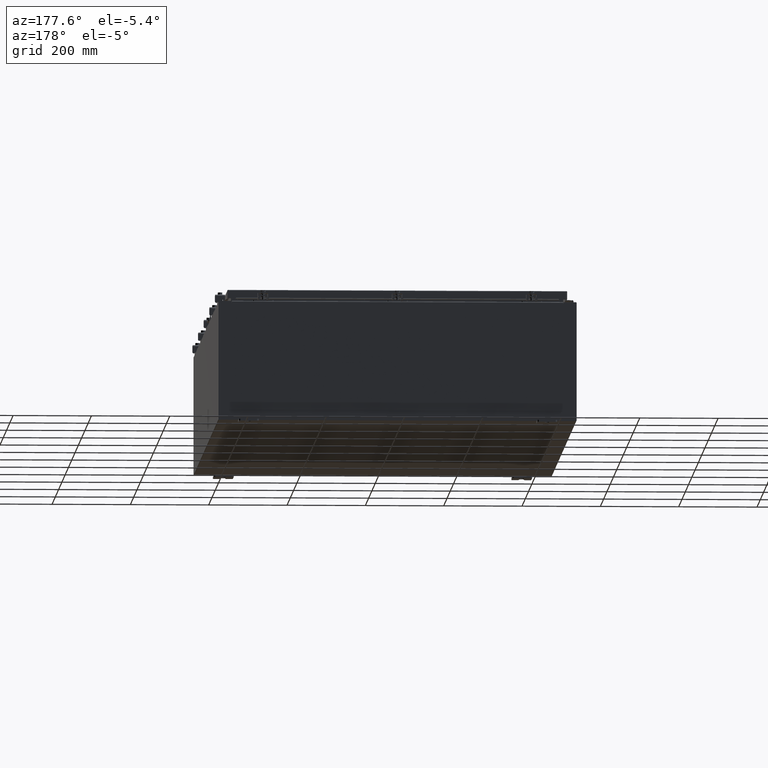
[diagram: clean part render]
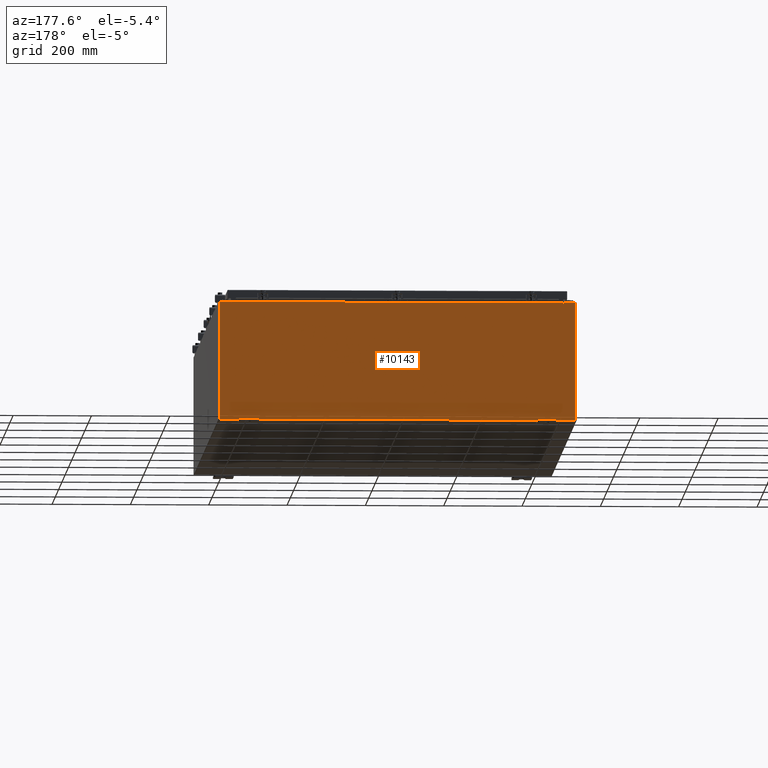
[diagram: same view with one face highlighted and labeled with its STEP entity id]
A machine part, auxiliary view. The second image highlights one B-rep face of the part: STEP entity #10143.
In plain terms, the highlighted planar face has unit normal (0, -1, 0).
Its self-contained STEP definition (entity closure, byte-faithful):
#409 = VERTEX_POINT ( 'NONE', #17280 ) ;
#1465 = DIRECTION ( 'NONE',  ( 0.0000000000000000000, -1.000000000000000000, 0.0000000000000000000 ) ) ;
#1556 = CARTESIAN_POINT ( 'NONE',  ( 16.67455000000000400, 0.0000000000000000000, 5.874949999999999200 ) ) ;
#1740 = ORIENTED_EDGE ( 'NONE', *, *, #21158, .T. ) ;
#2240 = DIRECTION ( 'NONE',  ( 0.0000000000000000000, 0.0000000000000000000, -1.000000000000000000 ) ) ;
#2544 = CARTESIAN_POINT ( 'NONE',  ( 16.65587500000000500, 0.0000000000000000000, 5.874949999999999200 ) ) ;
#2878 = EDGE_CURVE ( 'NONE', #22071, #4848, #28366, .T. ) ;
#3267 = CARTESIAN_POINT ( 'NONE',  ( -16.63720000000000000, 3.756290991288361700E-016, 5.912299999999999200 ) ) ;
#3508 = CARTESIAN_POINT ( 'NONE',  ( 17.92530000000000400, 0.0000000000000000000, 5.925300000000000000 ) ) ;
#3673 = ORIENTED_EDGE ( 'NONE', *, *, #23926, .T. ) ;
#4848 = VERTEX_POINT ( 'NONE', #38360 ) ;
#5728 = LINE ( 'NONE', #14194, #28507 ) ;
#7421 = DIRECTION ( 'NONE',  ( 0.0000000000000000000, 0.0000000000000000000, -1.000000000000000000 ) ) ;
#7808 = LINE ( 'NONE', #44236, #32138 ) ;
#8428 = VERTEX_POINT ( 'NONE', #3508 ) ;
#9551 = ORIENTED_EDGE ( 'NONE', *, *, #33819, .F. ) ;
#10143 = ADVANCED_FACE ( 'NONE', ( #47705 ), #20814, .F. ) ;
#11041 = CARTESIAN_POINT ( 'NONE',  ( 17.92530000000000400, 0.0000000000000000000, -5.925300000000000000 ) ) ;
#11583 = AXIS2_PLACEMENT_3D ( 'NONE', #25693, #1465, #35512 ) ;
#11782 = LINE ( 'NONE', #40733, #23185 ) ;
#12478 = VECTOR ( 'NONE', #18875, 39.37007874015748100 ) ;
#14194 = CARTESIAN_POINT ( 'NONE',  ( -17.92529999999999600, 0.0000000000000000000, 5.925299999999999100 ) ) ;
#15449 = VECTOR ( 'NONE', #20339, 39.37007874015748100 ) ;
#15828 = CIRCLE ( 'NONE', #59971, 0.01867499999999949400 ) ;
#15933 = VERTEX_POINT ( 'NONE', #56793 ) ;
#16035 = CARTESIAN_POINT ( 'NONE',  ( 16.67454999999949500, -0.0000000000000000000, -1.447541957108302900E-012 ) ) ;
#17033 = ORIENTED_EDGE ( 'NONE', *, *, #32883, .F. ) ;
#17280 = CARTESIAN_POINT ( 'NONE',  ( 16.67455000000000700, 0.0000000000000000000, 5.925300000000000000 ) ) ;
#17595 = CARTESIAN_POINT ( 'NONE',  ( -17.92529999999999600, 0.0000000000000000000, 5.925299999999999100 ) ) ;
#18875 = DIRECTION ( 'NONE',  ( 0.0000000000000000000, 0.0000000000000000000, 1.000000000000000000 ) ) ;
#19088 = VECTOR ( 'NONE', #57797, 39.37007874015748100 ) ;
#19220 = VECTOR ( 'NONE', #20808, 39.37007874015748100 ) ;
#19600 = ORIENTED_EDGE ( 'NONE', *, *, #29066, .T. ) ;
#19742 = EDGE_CURVE ( 'NONE', #46802, #4848, #21587, .T. ) ;
#20339 = DIRECTION ( 'NONE',  ( 1.000000000000000000, 0.0000000000000000000, 0.0000000000000000000 ) ) ;
#20808 = DIRECTION ( 'NONE',  ( -1.000000000000000000, -0.0000000000000000000, -0.0000000000000000000 ) ) ;
#20814 = PLANE ( 'NONE',  #11583 ) ;
#21158 = EDGE_CURVE ( 'NONE', #50834, #15933, #33685, .T. ) ;
#21587 = LINE ( 'NONE', #56106, #32998 ) ;
#22071 = VERTEX_POINT ( 'NONE', #3267 ) ;
#22549 = CARTESIAN_POINT ( 'NONE',  ( -16.67455000000000000, 0.0000000000000000000, 5.925299999999999100 ) ) ;
#22597 = VECTOR ( 'NONE', #27364, 39.37007874015748100 ) ;
#23185 = VECTOR ( 'NONE', #60321, 39.37007874015748100 ) ;
#23800 = VERTEX_POINT ( 'NONE', #56939 ) ;
#23926 = EDGE_CURVE ( 'NONE', #409, #8428, #5728, .T. ) ;
#23960 = DIRECTION ( 'NONE',  ( 1.000000000000000000, 0.0000000000000000000, 3.048036009064577000E-017 ) ) ;
#24373 = ORIENTED_EDGE ( 'NONE', *, *, #2878, .T. ) ;
#25693 = CARTESIAN_POINT ( 'NONE',  ( 0.0000000000000000000, 0.0000000000000000000, 0.0000000000000000000 ) ) ;
#26140 = EDGE_CURVE ( 'NONE', #22071, #30295, #7808, .T. ) ;
#27364 = DIRECTION ( 'NONE',  ( -0.0000000000000000000, -0.0000000000000000000, 1.000000000000000000 ) ) ;
#27546 = ORIENTED_EDGE ( 'NONE', *, *, #51553, .T. ) ;
#28366 = LINE ( 'NONE', #34826, #15449 ) ;
#28507 = VECTOR ( 'NONE', #23960, 39.37007874015748100 ) ;
#28592 = LINE ( 'NONE', #16035, #57516 ) ;
#28659 = CARTESIAN_POINT ( 'NONE',  ( -16.67455000000000000, -0.0000000000000000000, 0.0000000000000000000 ) ) ;
#29066 = EDGE_CURVE ( 'NONE', #15933, #23800, #35586, .T. ) ;
#30255 = ORIENTED_EDGE ( 'NONE', *, *, #31402, .F. ) ;
#30295 = VERTEX_POINT ( 'NONE', #46756 ) ;
#30459 = EDGE_LOOP ( 'NONE', ( #9551, #30255, #43044, #24373, #32470, #44144, #17033, #3673, #27546, #1740, #19600, #33683 ) ) ;
#31368 = DIRECTION ( 'NONE',  ( -0.0000000000000000000, 1.000000000000000000, -0.0000000000000000000 ) ) ;
#31402 = EDGE_CURVE ( 'NONE', #30295, #49245, #15828, .T. ) ;
#32138 = VECTOR ( 'NONE', #34502, 39.37007874015748100 ) ;
#32470 = ORIENTED_EDGE ( 'NONE', *, *, #19742, .F. ) ;
#32883 = EDGE_CURVE ( 'NONE', #409, #40086, #28592, .T. ) ;
#32998 = VECTOR ( 'NONE', #61034, 39.37007874015748100 ) ;
#33683 = ORIENTED_EDGE ( 'NONE', *, *, #35756, .T. ) ;
#33685 = LINE ( 'NONE', #54798, #19220 ) ;
#33819 = EDGE_CURVE ( 'NONE', #49245, #40292, #39892, .T. ) ;
#34502 = DIRECTION ( 'NONE',  ( 0.0000000000000000000, 0.0000000000000000000, -1.000000000000000000 ) ) ;
#34826 = CARTESIAN_POINT ( 'NONE',  ( -16.63720000000000000, 3.756290991288361700E-016, 5.912299999999999200 ) ) ;
#35512 = DIRECTION ( 'NONE',  ( 0.0000000000000000000, -0.0000000000000000000, -1.000000000000000000 ) ) ;
#35586 = LINE ( 'NONE', #17595, #22597 ) ;
#35756 = EDGE_CURVE ( 'NONE', #23800, #40292, #57900, .T. ) ;
#36572 = DIRECTION ( 'NONE',  ( -0.0000000000000000000, 1.000000000000000000, -0.0000000000000000000 ) ) ;
#38360 = CARTESIAN_POINT ( 'NONE',  ( 16.63720000000000400, 0.0000000000000000000, 5.912299999999999200 ) ) ;
#39892 = LINE ( 'NONE', #28659, #12478 ) ;
#40086 = VERTEX_POINT ( 'NONE', #1556 ) ;
#40292 = VERTEX_POINT ( 'NONE', #22549 ) ;
#40733 = CARTESIAN_POINT ( 'NONE',  ( 17.92530000000000400, 0.0000000000000000000, 5.925300000000000000 ) ) ;
#42759 = AXIS2_PLACEMENT_3D ( 'NONE', #2544, #36572, #7421 ) ;
#43044 = ORIENTED_EDGE ( 'NONE', *, *, #26140, .F. ) ;
#44144 = ORIENTED_EDGE ( 'NONE', *, *, #56782, .F. ) ;
#44236 = CARTESIAN_POINT ( 'NONE',  ( -16.63720000000000000, -0.0000000000000000000, 0.0000000000000000000 ) ) ;
#45143 = DIRECTION ( 'NONE',  ( -8.681145560799821800E-014, 0.0000000000000000000, -1.000000000000000000 ) ) ;
#46756 = CARTESIAN_POINT ( 'NONE',  ( -16.63720000000000000, -0.0000000000000000000, 5.874949999999999200 ) ) ;
#46802 = VERTEX_POINT ( 'NONE', #60733 ) ;
#47705 = FACE_OUTER_BOUND ( 'NONE', #30459, .T. ) ;
#49245 = VERTEX_POINT ( 'NONE', #60008 ) ;
#50834 = VERTEX_POINT ( 'NONE', #11041 ) ;
#51553 = EDGE_CURVE ( 'NONE', #8428, #50834, #11782, .T. ) ;
#52846 = CARTESIAN_POINT ( 'NONE',  ( -17.92529999999999600, 0.0000000000000000000, 5.925299999999999100 ) ) ;
#54798 = CARTESIAN_POINT ( 'NONE',  ( -17.92529999999999600, 0.0000000000000000000, -5.925300000000000000 ) ) ;
#56106 = CARTESIAN_POINT ( 'NONE',  ( 16.63720000000000400, 0.0000000000000000000, 0.0000000000000000000 ) ) ;
#56782 = EDGE_CURVE ( 'NONE', #40086, #46802, #60066, .T. ) ;
#56793 = CARTESIAN_POINT ( 'NONE',  ( -17.92529999999999600, 0.0000000000000000000, -5.925300000000000000 ) ) ;
#56939 = CARTESIAN_POINT ( 'NONE',  ( -17.92529999999999600, 0.0000000000000000000, 5.925299999999999100 ) ) ;
#57516 = VECTOR ( 'NONE', #45143, 39.37007874015748100 ) ;
#57797 = DIRECTION ( 'NONE',  ( 1.000000000000000000, 0.0000000000000000000, 3.048036009064577000E-017 ) ) ;
#57900 = LINE ( 'NONE', #52846, #19088 ) ;
#59971 = AXIS2_PLACEMENT_3D ( 'NONE', #60510, #31368, #2240 ) ;
#60008 = CARTESIAN_POINT ( 'NONE',  ( -16.67455000000000000, 0.0000000000000000000, 5.874949999999999200 ) ) ;
#60066 = CIRCLE ( 'NONE', #42759, 0.01867499999999949400 ) ;
#60321 = DIRECTION ( 'NONE',  ( 0.0000000000000000000, 0.0000000000000000000, -1.000000000000000000 ) ) ;
#60510 = CARTESIAN_POINT ( 'NONE',  ( -16.65587499999999800, 0.0000000000000000000, 5.874949999999999200 ) ) ;
#60733 = CARTESIAN_POINT ( 'NONE',  ( 16.63720000000000400, 0.0000000000000000000, 5.874949999999999200 ) ) ;
#61034 = DIRECTION ( 'NONE',  ( 0.0000000000000000000, 0.0000000000000000000, 1.000000000000000000 ) ) ;